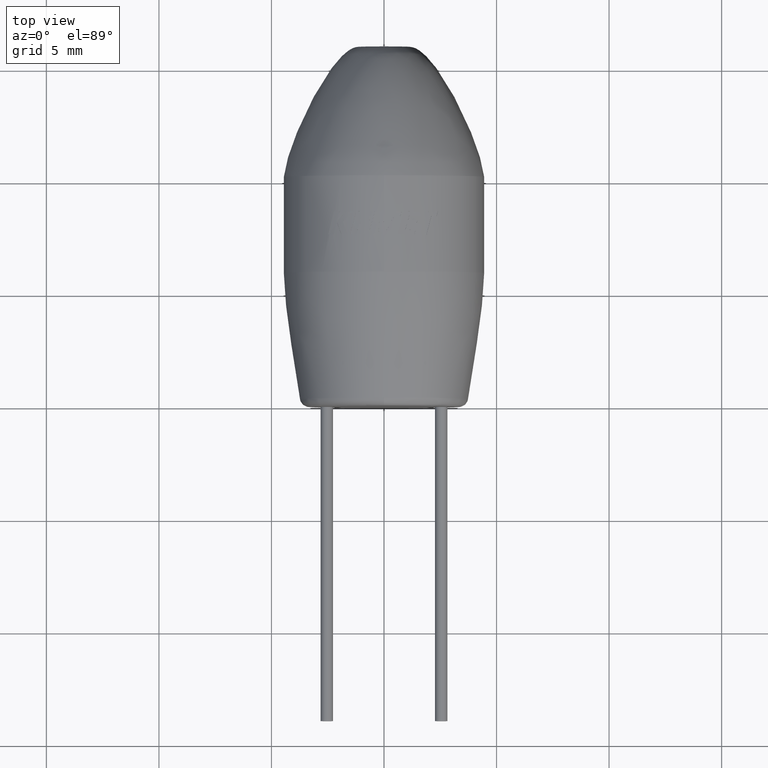
[diagram: clean part render]
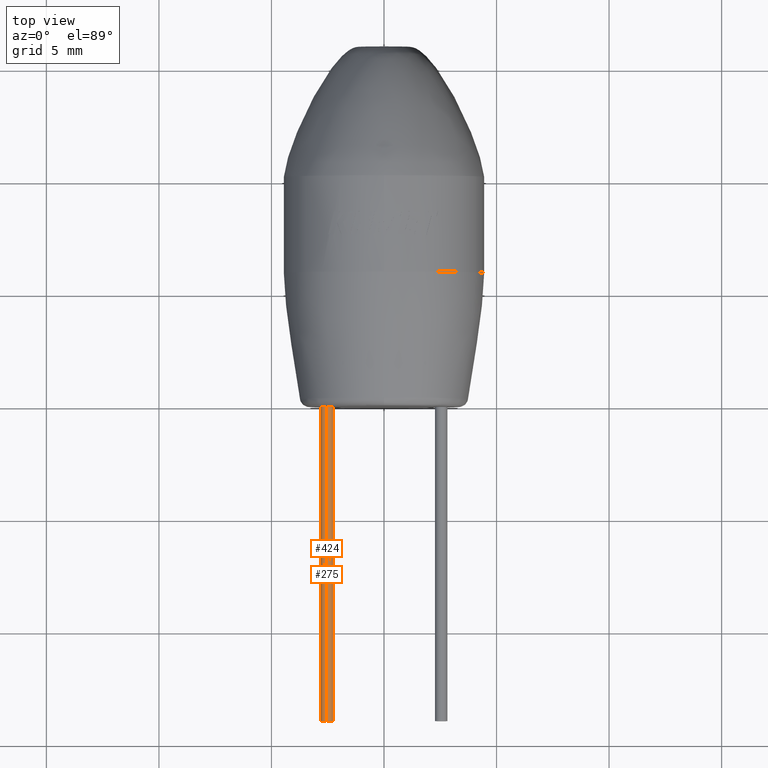
[diagram: same view with one multi-face feature highlighted, each face labeled with its STEP entity id]
A machine part, top view. The highlighted faces form ONE feature: a constant-radius fillet chain: 2 tangent blend faces with common blend radius 0.275 mm. The faces share edges in the B-rep.
Their STEP definitions:
[1] entity #424 (Cylinder):
#83 = CIRCLE ( 'NONE', #3444, 0.2750000000000002400 ) ;
#85 = DIRECTION ( 'NONE',  ( -0.0000000000000000000, 1.000000000000000000, -0.0000000000000000000 ) ) ;
#143 = LINE ( 'NONE', #2045, #1571 ) ;
#158 = EDGE_CURVE ( 'NONE', #606, #584, #340, .T. ) ;
#243 = CARTESIAN_POINT ( 'NONE',  ( -2.540000000000000000, -13.96000000000000100, 0.0000000000000000000 ) ) ;
#340 = CIRCLE ( 'NONE', #408, 0.2750000000000002400 ) ;
#408 = AXIS2_PLACEMENT_3D ( 'NONE', #243, #776, #1930 ) ;
#424 = ADVANCED_FACE ( 'NONE', ( #1757 ), #1085, .T. ) ;
#496 = CARTESIAN_POINT ( 'NONE',  ( -2.540000000000000000, 0.0000000000000000000, -0.2750000000000002400 ) ) ;
#573 = CARTESIAN_POINT ( 'NONE',  ( -2.540000000000000000, -13.96000000000000100, 0.2750000000000002400 ) ) ;
#584 = VERTEX_POINT ( 'NONE', #573 ) ;
#606 = VERTEX_POINT ( 'NONE', #2292 ) ;
#656 = ORIENTED_EDGE ( 'NONE', *, *, #2388, .T. ) ;
#776 = DIRECTION ( 'NONE',  ( 0.0000000000000000000, -1.000000000000000000, 0.0000000000000000000 ) ) ;
#797 = DIRECTION ( 'NONE',  ( -0.0000000000000000000, 1.000000000000000000, -0.0000000000000000000 ) ) ;
#826 = CARTESIAN_POINT ( 'NONE',  ( -2.540000000000000000, -13.96000000000000100, 0.2750000000000002400 ) ) ;
#908 = DIRECTION ( 'NONE',  ( -0.0000000000000000000, 1.000000000000000000, -0.0000000000000000000 ) ) ;
#951 = DIRECTION ( 'NONE',  ( 0.0000000000000000000, 0.0000000000000000000, 1.000000000000000000 ) ) ;
#1085 = CYLINDRICAL_SURFACE ( 'NONE', #2739, 0.2750000000000002400 ) ;
#1451 = ORIENTED_EDGE ( 'NONE', *, *, #2214, .F. ) ;
#1545 = VERTEX_POINT ( 'NONE', #1600 ) ;
#1571 = VECTOR ( 'NONE', #908, 1000.000000000000000 ) ;
#1600 = CARTESIAN_POINT ( 'NONE',  ( -2.540000000000000000, 0.0000000000000000000, 0.2750000000000002400 ) ) ;
#1618 = DIRECTION ( 'NONE',  ( 0.0000000000000000000, 0.0000000000000000000, 1.000000000000000000 ) ) ;
#1689 = CARTESIAN_POINT ( 'NONE',  ( -2.540000000000000000, 0.0000000000000000000, 0.0000000000000000000 ) ) ;
#1716 = ORIENTED_EDGE ( 'NONE', *, *, #158, .F. ) ;
#1757 = FACE_OUTER_BOUND ( 'NONE', #3634, .T. ) ;
#1930 = DIRECTION ( 'NONE',  ( 0.0000000000000000000, 0.0000000000000000000, -1.000000000000000000 ) ) ;
#2020 = VECTOR ( 'NONE', #797, 1000.000000000000000 ) ;
#2045 = CARTESIAN_POINT ( 'NONE',  ( -2.540000000000000000, -13.96000000000000100, -0.2750000000000002400 ) ) ;
#2092 = CARTESIAN_POINT ( 'NONE',  ( -2.540000000000000000, -13.96000000000000100, 0.0000000000000000000 ) ) ;
#2214 = EDGE_CURVE ( 'NONE', #584, #1545, #2845, .T. ) ;
#2292 = CARTESIAN_POINT ( 'NONE',  ( -2.540000000000000000, -13.96000000000000100, -0.2750000000000002400 ) ) ;
#2388 = EDGE_CURVE ( 'NONE', #606, #3295, #143, .T. ) ;
#2739 = AXIS2_PLACEMENT_3D ( 'NONE', #2092, #85, #951 ) ;
#2845 = LINE ( 'NONE', #826, #2020 ) ;
#2918 = ORIENTED_EDGE ( 'NONE', *, *, #3103, .T. ) ;
#3059 = DIRECTION ( 'NONE',  ( -0.0000000000000000000, -1.000000000000000000, -0.0000000000000000000 ) ) ;
#3103 = EDGE_CURVE ( 'NONE', #3295, #1545, #83, .T. ) ;
#3295 = VERTEX_POINT ( 'NONE', #496 ) ;
#3444 = AXIS2_PLACEMENT_3D ( 'NONE', #1689, #3059, #1618 ) ;
#3634 = EDGE_LOOP ( 'NONE', ( #1716, #656, #2918, #1451 ) ) ;
[2] entity #275 (Cylinder):
#14 = CARTESIAN_POINT ( 'NONE',  ( -2.540000000000000000, -13.96000000000000100, 0.0000000000000000000 ) ) ;
#27 = DIRECTION ( 'NONE',  ( 0.0000000000000000000, 0.0000000000000000000, -1.000000000000000000 ) ) ;
#143 = LINE ( 'NONE', #2045, #1571 ) ;
#275 = ADVANCED_FACE ( 'NONE', ( #2520 ), #1399, .T. ) ;
#496 = CARTESIAN_POINT ( 'NONE',  ( -2.540000000000000000, 0.0000000000000000000, -0.2750000000000002400 ) ) ;
#573 = CARTESIAN_POINT ( 'NONE',  ( -2.540000000000000000, -13.96000000000000100, 0.2750000000000002400 ) ) ;
#584 = VERTEX_POINT ( 'NONE', #573 ) ;
#603 = CARTESIAN_POINT ( 'NONE',  ( -2.540000000000000000, -13.96000000000000100, 0.0000000000000000000 ) ) ;
#606 = VERTEX_POINT ( 'NONE', #2292 ) ;
#622 = EDGE_LOOP ( 'NONE', ( #1803, #3035, #2775, #855 ) ) ;
#708 = EDGE_CURVE ( 'NONE', #1545, #3295, #2838, .T. ) ;
#797 = DIRECTION ( 'NONE',  ( -0.0000000000000000000, 1.000000000000000000, -0.0000000000000000000 ) ) ;
#826 = CARTESIAN_POINT ( 'NONE',  ( -2.540000000000000000, -13.96000000000000100, 0.2750000000000002400 ) ) ;
#855 = ORIENTED_EDGE ( 'NONE', *, *, #708, .T. ) ;
#884 = DIRECTION ( 'NONE',  ( 0.0000000000000000000, 0.0000000000000000000, 1.000000000000000000 ) ) ;
#908 = DIRECTION ( 'NONE',  ( -0.0000000000000000000, 1.000000000000000000, -0.0000000000000000000 ) ) ;
#1167 = DIRECTION ( 'NONE',  ( -0.0000000000000000000, -1.000000000000000000, -0.0000000000000000000 ) ) ;
#1211 = EDGE_CURVE ( 'NONE', #584, #606, #2621, .T. ) ;
#1399 = CYLINDRICAL_SURFACE ( 'NONE', #3586, 0.2750000000000002400 ) ;
#1545 = VERTEX_POINT ( 'NONE', #1600 ) ;
#1571 = VECTOR ( 'NONE', #908, 1000.000000000000000 ) ;
#1600 = CARTESIAN_POINT ( 'NONE',  ( -2.540000000000000000, 0.0000000000000000000, 0.2750000000000002400 ) ) ;
#1714 = AXIS2_PLACEMENT_3D ( 'NONE', #2335, #1167, #884 ) ;
#1803 = ORIENTED_EDGE ( 'NONE', *, *, #2388, .F. ) ;
#2020 = VECTOR ( 'NONE', #797, 1000.000000000000000 ) ;
#2045 = CARTESIAN_POINT ( 'NONE',  ( -2.540000000000000000, -13.96000000000000100, -0.2750000000000002400 ) ) ;
#2214 = EDGE_CURVE ( 'NONE', #584, #1545, #2845, .T. ) ;
#2292 = CARTESIAN_POINT ( 'NONE',  ( -2.540000000000000000, -13.96000000000000100, -0.2750000000000002400 ) ) ;
#2327 = DIRECTION ( 'NONE',  ( 0.0000000000000000000, 0.0000000000000000000, 1.000000000000000000 ) ) ;
#2335 = CARTESIAN_POINT ( 'NONE',  ( -2.540000000000000000, 0.0000000000000000000, 0.0000000000000000000 ) ) ;
#2388 = EDGE_CURVE ( 'NONE', #606, #3295, #143, .T. ) ;
#2520 = FACE_OUTER_BOUND ( 'NONE', #622, .T. ) ;
#2621 = CIRCLE ( 'NONE', #3433, 0.2750000000000002400 ) ;
#2775 = ORIENTED_EDGE ( 'NONE', *, *, #2214, .T. ) ;
#2838 = CIRCLE ( 'NONE', #1714, 0.2750000000000002400 ) ;
#2845 = LINE ( 'NONE', #826, #2020 ) ;
#3035 = ORIENTED_EDGE ( 'NONE', *, *, #1211, .F. ) ;
#3295 = VERTEX_POINT ( 'NONE', #496 ) ;
#3433 = AXIS2_PLACEMENT_3D ( 'NONE', #603, #3461, #27 ) ;
#3451 = DIRECTION ( 'NONE',  ( -0.0000000000000000000, 1.000000000000000000, -0.0000000000000000000 ) ) ;
#3461 = DIRECTION ( 'NONE',  ( 0.0000000000000000000, -1.000000000000000000, 0.0000000000000000000 ) ) ;
#3586 = AXIS2_PLACEMENT_3D ( 'NONE', #14, #3451, #2327 ) ;